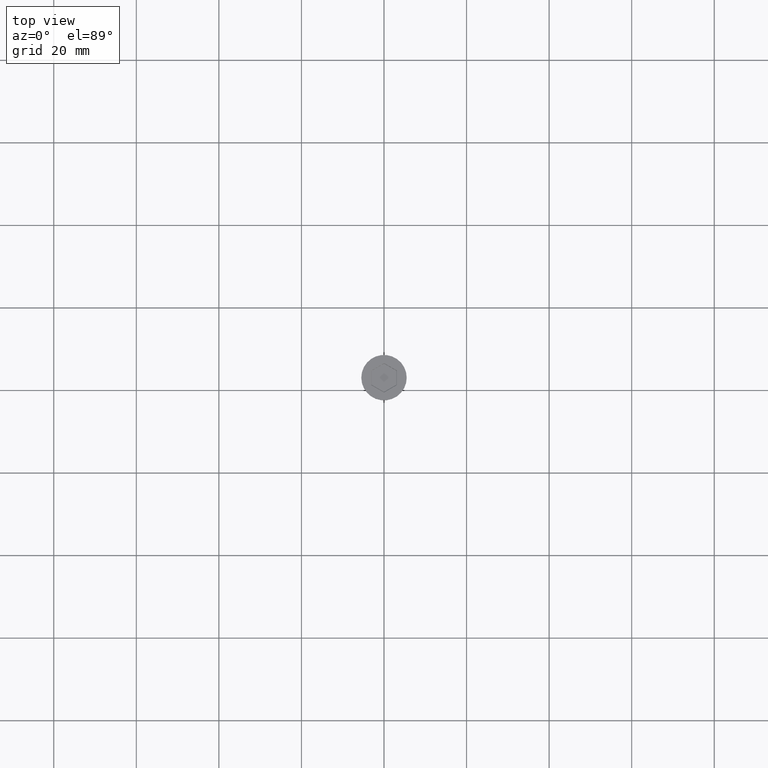
[diagram: clean part render]
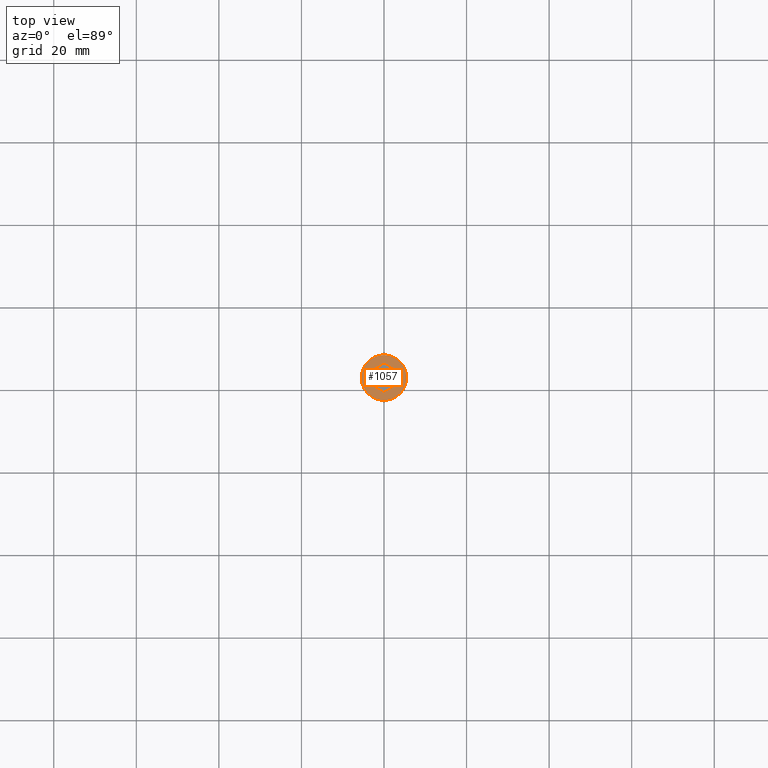
[diagram: same view with one face highlighted and labeled with its STEP entity id]
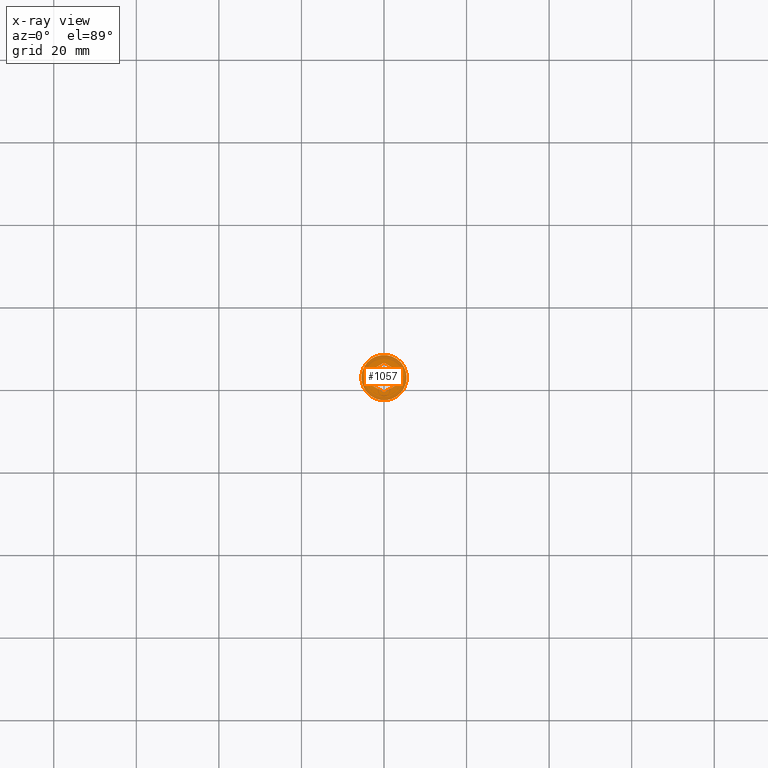
[diagram: x-ray of the same camera — body ghosted, the highlighted face saturated]
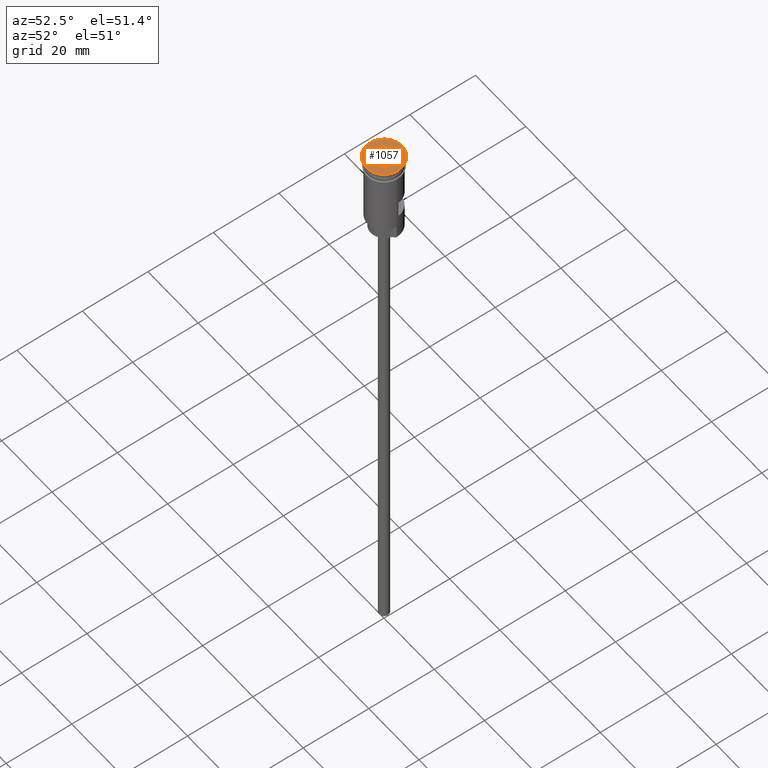
[diagram: same view with one face highlighted and labeled with its STEP entity id]
A machine part, top view. The second image highlights one B-rep face of the part: STEP entity #1057.
The next image is the same camera in x-ray: the body ghosted, the highlighted face saturated — about 0% of this face is hidden behind the body in this view.
A second angle (auxiliary view) of the same face is appended — the face is thin or edge-on in the first view.
In plain terms, the highlighted planar face has unit normal (0, -0, 1).
Its self-contained STEP definition (entity closure, byte-faithful):
#16 = VERTEX_POINT ( 'NONE', #1426 ) ;
#32 = CARTESIAN_POINT ( 'NONE',  ( 0.000000000000000000, 0.000000000000000000, 0.000000000000000000 ) ) ;
#48 = DIRECTION ( 'NONE',  ( -0.8660254037844387076, 0.4999999999999998335, 0.000000000000000000 ) ) ;
#75 = EDGE_CURVE ( 'NONE', #1452, #1543, #724, .T. ) ;
#78 = ORIENTED_EDGE ( 'NONE', *, *, #221, .T. ) ;
#89 = DIRECTION ( 'NONE',  ( 0.8660254037844387076, 0.4999999999999998890, 0.000000000000000000 ) ) ;
#104 = DIRECTION ( 'NONE',  ( 1.000000000000000000, 0.000000000000000000, 0.000000000000000000 ) ) ;
#128 = ORIENTED_EDGE ( 'NONE', *, *, #1006, .T. ) ;
#140 = DIRECTION ( 'NONE',  ( 1.000000000000000000, 0.000000000000000000, 0.000000000000000000 ) ) ;
#163 = AXIS2_PLACEMENT_3D ( 'NONE', #1568, #958, #140 ) ;
#178 = VERTEX_POINT ( 'NONE', #219 ) ;
#181 = CARTESIAN_POINT ( 'NONE',  ( -0.04999999999999187039, 3.550704155516183125, 0.000000000000000000 ) ) ;
#182 = ORIENTED_EDGE ( 'NONE', *, *, #1322, .T. ) ;
#183 = CARTESIAN_POINT ( 'NONE',  ( -3.049999999999991385, -1.818653347947305932, 0.000000000000000000 ) ) ;
#202 = DIRECTION ( 'NONE',  ( 0.8660254037844388186, -0.4999999999999997780, 0.000000000000000000 ) ) ;
#219 = CARTESIAN_POINT ( 'NONE',  ( 6.103073414120078086E-16, 3.579571668975660259, 0.000000000000000000 ) ) ;
#221 = EDGE_CURVE ( 'NONE', #1543, #1452, #1314, .T. ) ;
#223 = CARTESIAN_POINT ( 'NONE',  ( 5.500000000000000000, 0.000000000000000000, 0.000000000000000000 ) ) ;
#225 = VECTOR ( 'NONE', #89, 1000.000000000000000 ) ;
#310 = VECTOR ( 'NONE', #202, 1000.000000000000114 ) ;
#311 = CARTESIAN_POINT ( 'NONE',  ( 3.049999999999991829, 1.818653347947307708, 0.000000000000000000 ) ) ;
#319 = LINE ( 'NONE', #311, #310 ) ;
#331 = AXIS2_PLACEMENT_3D ( 'NONE', #32, #1256, #1377 ) ;
#348 = LINE ( 'NONE', #1194, #611 ) ;
#426 = AXIS2_PLACEMENT_3D ( 'NONE', #610, #716, #104 ) ;
#494 = DIRECTION ( 'NONE',  ( 0.000000000000000000, 1.000000000000000000, 0.000000000000000000 ) ) ;
#509 = CARTESIAN_POINT ( 'NONE',  ( -5.500000000000000000, 6.735557395310442023E-16, 0.000000000000000000 ) ) ;
#543 = LINE ( 'NONE', #183, #547 ) ;
#546 = CARTESIAN_POINT ( 'NONE',  ( -3.099999999999983213, -1.789785834487829241, 0.000000000000000000 ) ) ;
#547 = VECTOR ( 'NONE', #48, 1000.000000000000000 ) ;
#610 = CARTESIAN_POINT ( 'NONE',  ( 0.000000000000000000, 0.000000000000000000, 0.000000000000000000 ) ) ;
#611 = VECTOR ( 'NONE', #494, 1000.000000000000000 ) ;
#643 = VERTEX_POINT ( 'NONE', #1545 ) ;
#663 = LINE ( 'NONE', #1438, #1105 ) ;
#674 = VERTEX_POINT ( 'NONE', #546 ) ;
#681 = VERTEX_POINT ( 'NONE', #1520 ) ;
#709 = EDGE_LOOP ( 'NONE', ( #78, #930 ) ) ;
#716 = DIRECTION ( 'NONE',  ( 0.000000000000000000, -0.000000000000000000, 1.000000000000000000 ) ) ;
#724 = CIRCLE ( 'NONE', #163, 5.500000000000000000 ) ;
#730 = FACE_OUTER_BOUND ( 'NONE', #709, .T. ) ;
#777 = EDGE_CURVE ( 'NONE', #643, #674, #543, .T. ) ;
#831 = ORIENTED_EDGE ( 'NONE', *, *, #777, .T. ) ;
#845 = CARTESIAN_POINT ( 'NONE',  ( 3.099999999999982769, -1.732050807568876083, 0.000000000000000000 ) ) ;
#908 = ORIENTED_EDGE ( 'NONE', *, *, #1040, .T. ) ;
#930 = ORIENTED_EDGE ( 'NONE', *, *, #75, .T. ) ;
#958 = DIRECTION ( 'NONE',  ( -0.000000000000000000, -0.000000000000000000, 1.000000000000000000 ) ) ;
#991 = EDGE_CURVE ( 'NONE', #16, #178, #1408, .T. ) ;
#1006 = EDGE_CURVE ( 'NONE', #1306, #643, #663, .T. ) ;
#1040 = EDGE_CURVE ( 'NONE', #681, #1306, #1463, .T. ) ;
#1057 = ADVANCED_FACE ( 'NONE', ( #1210, #730 ), #1222, .T. ) ;
#1105 = VECTOR ( 'NONE', #1147, 1000.000000000000114 ) ;
#1147 = DIRECTION ( 'NONE',  ( -0.8660254037844385966, -0.5000000000000001110, 0.000000000000000000 ) ) ;
#1187 = VECTOR ( 'NONE', #1583, 1000.000000000000000 ) ;
#1194 = CARTESIAN_POINT ( 'NONE',  ( -3.099999999999983213, 1.732050807568876971, 0.000000000000000000 ) ) ;
#1210 = FACE_BOUND ( 'NONE', #1260, .T. ) ;
#1222 = PLANE ( 'NONE',  #426 ) ;
#1256 = DIRECTION ( 'NONE',  ( -0.000000000000000000, -0.000000000000000000, 1.000000000000000000 ) ) ;
#1260 = EDGE_LOOP ( 'NONE', ( #1284, #1457, #182, #908, #128, #831 ) ) ;
#1284 = ORIENTED_EDGE ( 'NONE', *, *, #1373, .T. ) ;
#1288 = CARTESIAN_POINT ( 'NONE',  ( 3.099999999999982769, -1.789785834487828353, 0.000000000000000000 ) ) ;
#1306 = VERTEX_POINT ( 'NONE', #1288 ) ;
#1314 = CIRCLE ( 'NONE', #331, 5.500000000000000000 ) ;
#1322 = EDGE_CURVE ( 'NONE', #178, #681, #319, .T. ) ;
#1373 = EDGE_CURVE ( 'NONE', #674, #16, #348, .T. ) ;
#1377 = DIRECTION ( 'NONE',  ( 1.000000000000000000, 0.000000000000000000, 0.000000000000000000 ) ) ;
#1408 = LINE ( 'NONE', #181, #225 ) ;
#1426 = CARTESIAN_POINT ( 'NONE',  ( -3.099999999999983213, 1.789785834487829908, 0.000000000000000000 ) ) ;
#1438 = CARTESIAN_POINT ( 'NONE',  ( 0.04999999999999141936, -3.550704155516182237, 0.000000000000000000 ) ) ;
#1452 = VERTEX_POINT ( 'NONE', #509 ) ;
#1457 = ORIENTED_EDGE ( 'NONE', *, *, #991, .T. ) ;
#1463 = LINE ( 'NONE', #845, #1187 ) ;
#1520 = CARTESIAN_POINT ( 'NONE',  ( 3.099999999999983213, 1.789785834487831462, 0.000000000000000000 ) ) ;
#1543 = VERTEX_POINT ( 'NONE', #223 ) ;
#1545 = CARTESIAN_POINT ( 'NONE',  ( -1.958864205101993824E-16, -3.579571668975658927, 0.000000000000000000 ) ) ;
#1568 = CARTESIAN_POINT ( 'NONE',  ( 0.000000000000000000, 0.000000000000000000, 0.000000000000000000 ) ) ;
#1583 = DIRECTION ( 'NONE',  ( -1.251928832280966188E-16, -1.000000000000000000, 0.000000000000000000 ) ) ;